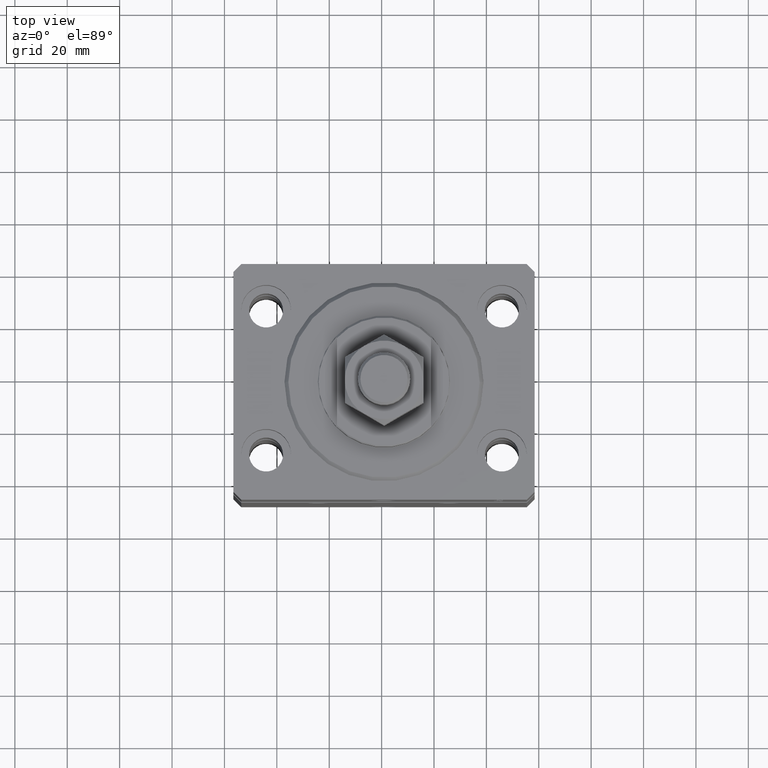
[diagram: clean part render]
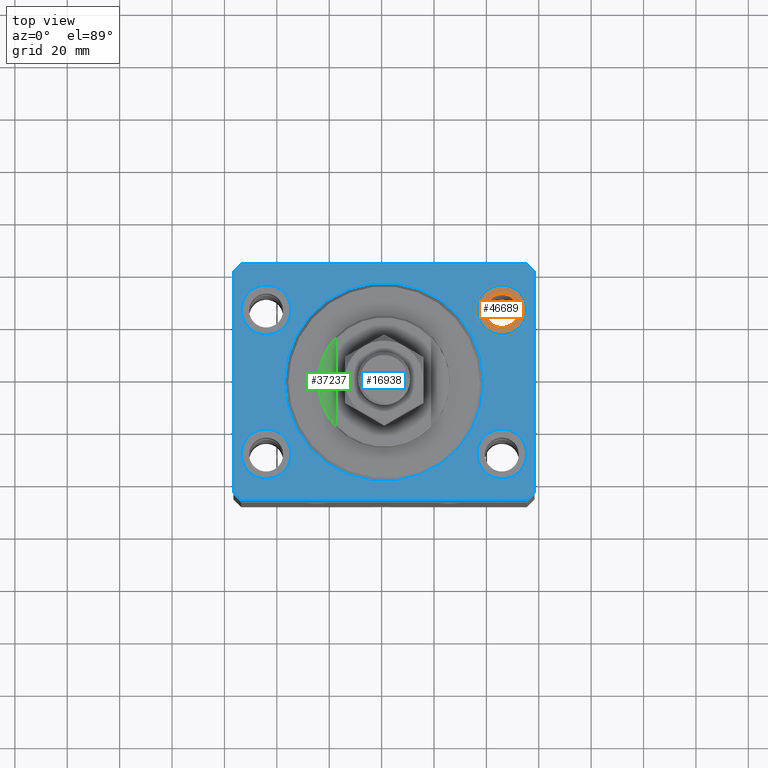
[diagram: same view with three faces highlighted in distinct colors, each labeled with its STEP entity id]
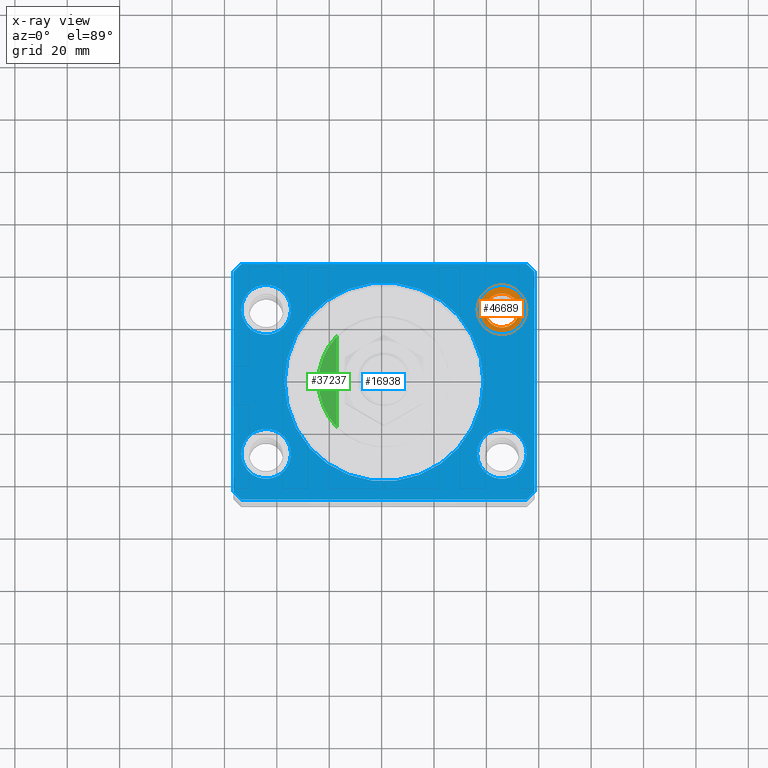
[diagram: x-ray of the same camera — body ghosted, the three highlighted faces saturated]
A machine part, top view with three faces highlighted in distinct colors.
The next image is the same camera in x-ray (body ghosted, the three faces saturated) — at least one of them is partly hidden behind the body in this view.
Their STEP definitions:

[orange] entity #46689 — the highlighted planar face has unit normal (0, 0, 1).
#2422 = DIRECTION ( 'NONE',  ( 1.000000000000000000, 0.000000000000000000, 0.000000000000000000 ) ) ;
#3208 = FACE_BOUND ( 'NONE', #36563, .T. ) ;
#3718 = AXIS2_PLACEMENT_3D ( 'NONE', #45501, #10846, #19519 ) ;
#3980 = CARTESIAN_POINT ( 'NONE',  ( 45.00000000000000000, 27.50000000000001776, -13.00000000000000000 ) ) ;
#4184 = DIRECTION ( 'NONE',  ( 1.000000000000000000, 0.000000000000000000, 0.000000000000000000 ) ) ;
#5514 = ORIENTED_EDGE ( 'NONE', *, *, #11477, .T. ) ;
#5842 = DIRECTION ( 'NONE',  ( 0.000000000000000000, 0.000000000000000000, 1.000000000000000000 ) ) ;
#7072 = EDGE_CURVE ( 'NONE', #32662, #12297, #16760, .T. ) ;
#9494 = CARTESIAN_POINT ( 'NONE',  ( 45.00000000000000000, 27.50000000000001776, -13.00000000000000000 ) ) ;
#10846 = DIRECTION ( 'NONE',  ( 0.000000000000000000, 0.000000000000000000, 1.000000000000000000 ) ) ;
#11477 = EDGE_CURVE ( 'NONE', #12297, #32662, #19236, .T. ) ;
#12297 = VERTEX_POINT ( 'NONE', #40716 ) ;
#14292 = VERTEX_POINT ( 'NONE', #45421 ) ;
#15544 = CARTESIAN_POINT ( 'NONE',  ( 51.50000000000000000, 27.50000000000001776, -13.00000000000000000 ) ) ;
#16760 = CIRCLE ( 'NONE', #47799, 9.500000000000001776 ) ;
#17808 = PLANE ( 'NONE',  #44869 ) ;
#18328 = DIRECTION ( 'NONE',  ( 1.000000000000000000, 0.000000000000000000, 0.000000000000000000 ) ) ;
#18730 = VERTEX_POINT ( 'NONE', #15544 ) ;
#19236 = CIRCLE ( 'NONE', #3718, 9.500000000000001776 ) ;
#19519 = DIRECTION ( 'NONE',  ( 1.000000000000000000, 0.000000000000000000, 0.000000000000000000 ) ) ;
#21271 = EDGE_CURVE ( 'NONE', #18730, #14292, #31455, .T. ) ;
#21971 = DIRECTION ( 'NONE',  ( 0.000000000000000000, 0.000000000000000000, 1.000000000000000000 ) ) ;
#25363 = AXIS2_PLACEMENT_3D ( 'NONE', #3980, #21971, #18328 ) ;
#25492 = ORIENTED_EDGE ( 'NONE', *, *, #21271, .F. ) ;
#27501 = CARTESIAN_POINT ( 'NONE',  ( 45.00000000000000000, 27.50000000000001776, -13.00000000000000000 ) ) ;
#29169 = EDGE_CURVE ( 'NONE', #14292, #18730, #30016, .T. ) ;
#30016 = CIRCLE ( 'NONE', #25363, 6.499999999999999112 ) ;
#30652 = DIRECTION ( 'NONE',  ( 0.000000000000000000, 0.000000000000000000, 1.000000000000000000 ) ) ;
#31455 = CIRCLE ( 'NONE', #40738, 6.499999999999999112 ) ;
#32633 = CARTESIAN_POINT ( 'NONE',  ( 45.00000000000000000, 27.50000000000001776, -13.00000000000000000 ) ) ;
#32662 = VERTEX_POINT ( 'NONE', #33631 ) ;
#33631 = CARTESIAN_POINT ( 'NONE',  ( 35.50000000000000000, 27.50000000000001776, -13.00000000000000000 ) ) ;
#36277 = FACE_OUTER_BOUND ( 'NONE', #43435, .T. ) ;
#36563 = EDGE_LOOP ( 'NONE', ( #25492, #47199 ) ) ;
#37826 = ORIENTED_EDGE ( 'NONE', *, *, #7072, .T. ) ;
#40395 = DIRECTION ( 'NONE',  ( 1.000000000000000000, 0.000000000000000000, -0.000000000000000000 ) ) ;
#40716 = CARTESIAN_POINT ( 'NONE',  ( 54.50000000000000000, 27.50000000000001776, -13.00000000000000000 ) ) ;
#40738 = AXIS2_PLACEMENT_3D ( 'NONE', #9494, #5842, #2422 ) ;
#43435 = EDGE_LOOP ( 'NONE', ( #5514, #37826 ) ) ;
#44869 = AXIS2_PLACEMENT_3D ( 'NONE', #32633, #47440, #40395 ) ;
#45421 = CARTESIAN_POINT ( 'NONE',  ( 38.50000000000000000, 27.50000000000001776, -13.00000000000000000 ) ) ;
#45501 = CARTESIAN_POINT ( 'NONE',  ( 45.00000000000000000, 27.50000000000001776, -13.00000000000000000 ) ) ;
#46689 = ADVANCED_FACE ( 'NONE', ( #3208, #36277 ), #17808, .T. ) ;
#47199 = ORIENTED_EDGE ( 'NONE', *, *, #29169, .F. ) ;
#47440 = DIRECTION ( 'NONE',  ( 0.000000000000000000, 0.000000000000000000, 1.000000000000000000 ) ) ;
#47799 = AXIS2_PLACEMENT_3D ( 'NONE', #27501, #30652, #4184 ) ;

[blue] entity #16938 — the highlighted planar face has unit normal (0, 0, 1).
#123 = DIRECTION ( 'NONE',  ( 0.000000000000000000, 0.000000000000000000, 1.000000000000000000 ) ) ;
#165 = ORIENTED_EDGE ( 'NONE', *, *, #18789, .F. ) ;
#867 = ORIENTED_EDGE ( 'NONE', *, *, #15584, .T. ) ;
#1116 = ORIENTED_EDGE ( 'NONE', *, *, #9834, .T. ) ;
#1436 = LINE ( 'NONE', #38135, #37787 ) ;
#1784 = VERTEX_POINT ( 'NONE', #39018 ) ;
#2127 = AXIS2_PLACEMENT_3D ( 'NONE', #39250, #9623, #6209 ) ;
#2175 = DIRECTION ( 'NONE',  ( -0.7071067811865483499, -0.7071067811865466846, 0.000000000000000000 ) ) ;
#2217 = LINE ( 'NONE', #20698, #26972 ) ;
#2300 = DIRECTION ( 'NONE',  ( 1.000000000000000000, 0.000000000000000000, 0.000000000000000000 ) ) ;
#2472 = CARTESIAN_POINT ( 'NONE',  ( 0.000000000000000000, 0.000000000000000000, 0.000000000000000000 ) ) ;
#3198 = ORIENTED_EDGE ( 'NONE', *, *, #31156, .T. ) ;
#3863 = VERTEX_POINT ( 'NONE', #27391 ) ;
#4190 = CIRCLE ( 'NONE', #45293, 9.500000000000001776 ) ;
#4194 = VERTEX_POINT ( 'NONE', #27096 ) ;
#4798 = VERTEX_POINT ( 'NONE', #7702 ) ;
#4919 = VERTEX_POINT ( 'NONE', #15924 ) ;
#5903 = LINE ( 'NONE', #20736, #5989 ) ;
#5989 = VECTOR ( 'NONE', #35551, 1000.000000000000000 ) ;
#6063 = LINE ( 'NONE', #35004, #28152 ) ;
#6074 = DIRECTION ( 'NONE',  ( 0.000000000000000000, 0.000000000000000000, 1.000000000000000000 ) ) ;
#6209 = DIRECTION ( 'NONE',  ( 1.000000000000000000, 0.000000000000000000, 0.000000000000000000 ) ) ;
#6461 = CARTESIAN_POINT ( 'NONE',  ( 57.50000000000055422, 41.99999999999997868, 0.000000000000000000 ) ) ;
#6820 = AXIS2_PLACEMENT_3D ( 'NONE', #47235, #17360, #2300 ) ;
#7410 = EDGE_LOOP ( 'NONE', ( #29266, #30169 ) ) ;
#7702 = CARTESIAN_POINT ( 'NONE',  ( 54.50000000000000000, 27.50000000000001776, 0.000000000000000000 ) ) ;
#7783 = DIRECTION ( 'NONE',  ( 0.000000000000000000, 0.000000000000000000, 1.000000000000000000 ) ) ;
#7784 = DIRECTION ( 'NONE',  ( 0.7071067811865483499, 0.7071067811865466846, 0.000000000000000000 ) ) ;
#8062 = CARTESIAN_POINT ( 'NONE',  ( 57.50000000000000711, -41.99999999999998579, 0.000000000000000000 ) ) ;
#8090 = AXIS2_PLACEMENT_3D ( 'NONE', #21890, #29651, #29412 ) ;
#8302 = LINE ( 'NONE', #8062, #22813 ) ;
#8355 = EDGE_CURVE ( 'NONE', #14677, #35409, #24234, .T. ) ;
#8487 = CARTESIAN_POINT ( 'NONE',  ( -45.00000000000000000, -27.49999999999999645, 0.000000000000000000 ) ) ;
#8541 = ORIENTED_EDGE ( 'NONE', *, *, #31639, .F. ) ;
#9025 = CARTESIAN_POINT ( 'NONE',  ( -38.00000000000000000, 4.653657836759941941E-15, 0.000000000000000000 ) ) ;
#9097 = CARTESIAN_POINT ( 'NONE',  ( 54.50000000000058975, 45.00000000000002842, 0.000000000000000000 ) ) ;
#9397 = VECTOR ( 'NONE', #17644, 999.9999999999998863 ) ;
#9536 = CIRCLE ( 'NONE', #14975, 38.00000000000000000 ) ;
#9623 = DIRECTION ( 'NONE',  ( 0.000000000000000000, 0.000000000000000000, 1.000000000000000000 ) ) ;
#9725 = FACE_BOUND ( 'NONE', #36438, .T. ) ;
#9796 = CARTESIAN_POINT ( 'NONE',  ( 57.50000000000000711, -41.99999999999998579, 0.000000000000000000 ) ) ;
#9834 = EDGE_CURVE ( 'NONE', #17242, #1784, #1436, .T. ) ;
#10316 = EDGE_LOOP ( 'NONE', ( #165, #8541 ) ) ;
#10483 = EDGE_CURVE ( 'NONE', #4919, #17242, #2217, .T. ) ;
#10873 = DIRECTION ( 'NONE',  ( 1.000000000000000000, 0.000000000000000000, 0.000000000000000000 ) ) ;
#11673 = CARTESIAN_POINT ( 'NONE',  ( -45.00000000000000000, 27.50000000000000355, 0.000000000000000000 ) ) ;
#11886 = DIRECTION ( 'NONE',  ( 0.000000000000000000, 0.000000000000000000, 1.000000000000000000 ) ) ;
#11899 = DIRECTION ( 'NONE',  ( 1.000000000000000000, 0.000000000000000000, 0.000000000000000000 ) ) ;
#11951 = ORIENTED_EDGE ( 'NONE', *, *, #19761, .F. ) ;
#12339 = EDGE_CURVE ( 'NONE', #38486, #23650, #9536, .T. ) ;
#12761 = EDGE_LOOP ( 'NONE', ( #11951, #47418 ) ) ;
#12862 = VECTOR ( 'NONE', #7784, 1000.000000000000000 ) ;
#12948 = EDGE_CURVE ( 'NONE', #23650, #38486, #40577, .T. ) ;
#13170 = EDGE_CURVE ( 'NONE', #45740, #18455, #8302, .T. ) ;
#13309 = CARTESIAN_POINT ( 'NONE',  ( -35.50000000000000000, 27.50000000000000355, 0.000000000000000000 ) ) ;
#13343 = VERTEX_POINT ( 'NONE', #14080 ) ;
#13353 = FACE_BOUND ( 'NONE', #7410, .T. ) ;
#13514 = DIRECTION ( 'NONE',  ( -1.000000000000000000, -2.546383084002639322E-16, 0.000000000000000000 ) ) ;
#14080 = CARTESIAN_POINT ( 'NONE',  ( 35.50000000000000000, -27.49999999999999645, 0.000000000000000000 ) ) ;
#14181 = EDGE_CURVE ( 'NONE', #14361, #4194, #44500, .T. ) ;
#14194 = CARTESIAN_POINT ( 'NONE',  ( -54.50000000000000711, -45.00000000000000000, 0.000000000000000000 ) ) ;
#14361 = VERTEX_POINT ( 'NONE', #37119 ) ;
#14425 = ORIENTED_EDGE ( 'NONE', *, *, #13170, .T. ) ;
#14640 = CARTESIAN_POINT ( 'NONE',  ( 45.00000000000000000, 27.50000000000001776, 0.000000000000000000 ) ) ;
#14677 = VERTEX_POINT ( 'NONE', #9097 ) ;
#14770 = ORIENTED_EDGE ( 'NONE', *, *, #14875, .F. ) ;
#14875 = EDGE_CURVE ( 'NONE', #4798, #30453, #28114, .T. ) ;
#14975 = AXIS2_PLACEMENT_3D ( 'NONE', #33451, #123, #29774 ) ;
#15584 = EDGE_CURVE ( 'NONE', #35409, #29383, #6063, .T. ) ;
#15924 = CARTESIAN_POINT ( 'NONE',  ( -57.50000000000000711, -42.00000000000000711, 0.000000000000000000 ) ) ;
#16198 = ORIENTED_EDGE ( 'NONE', *, *, #40481, .T. ) ;
#16538 = CIRCLE ( 'NONE', #19673, 9.500000000000001776 ) ;
#16883 = EDGE_CURVE ( 'NONE', #30453, #4798, #16538, .T. ) ;
#16938 = ADVANCED_FACE ( 'NONE', ( #13353, #21139, #9725, #36849, #18394, #33226 ), #48032, .T. ) ;
#17242 = VERTEX_POINT ( 'NONE', #14194 ) ;
#17307 = DIRECTION ( 'NONE',  ( 0.000000000000000000, 0.000000000000000000, 1.000000000000000000 ) ) ;
#17360 = DIRECTION ( 'NONE',  ( 0.000000000000000000, 0.000000000000000000, 1.000000000000000000 ) ) ;
#17644 = DIRECTION ( 'NONE',  ( -0.7071067811865376918, 0.7071067811865574537, 0.000000000000000000 ) ) ;
#18394 = FACE_BOUND ( 'NONE', #30825, .T. ) ;
#18455 = VERTEX_POINT ( 'NONE', #29752 ) ;
#18789 = EDGE_CURVE ( 'NONE', #34186, #3863, #4190, .T. ) ;
#18967 = ORIENTED_EDGE ( 'NONE', *, *, #10483, .T. ) ;
#19185 = DIRECTION ( 'NONE',  ( 1.000000000000000000, 0.000000000000000000, 0.000000000000000000 ) ) ;
#19673 = AXIS2_PLACEMENT_3D ( 'NONE', #26166, #44150, #10873 ) ;
#19761 = EDGE_CURVE ( 'NONE', #32607, #13343, #25939, .T. ) ;
#19981 = DIRECTION ( 'NONE',  ( 0.7071067811865491270, -0.7071067811865459074, 0.000000000000000000 ) ) ;
#20698 = CARTESIAN_POINT ( 'NONE',  ( -57.50000000000000711, -42.00000000000000711, 0.000000000000000000 ) ) ;
#20736 = CARTESIAN_POINT ( 'NONE',  ( -57.49999999999998579, 42.00000000000000711, 0.000000000000000000 ) ) ;
#21139 = FACE_BOUND ( 'NONE', #12761, .T. ) ;
#21890 = CARTESIAN_POINT ( 'NONE',  ( 45.00000000000000000, -27.49999999999999645, 0.000000000000000000 ) ) ;
#22623 = EDGE_CURVE ( 'NONE', #1784, #45740, #37653, .T. ) ;
#22813 = VECTOR ( 'NONE', #33101, 1000.000000000000000 ) ;
#23557 = AXIS2_PLACEMENT_3D ( 'NONE', #24542, #6074, #35719 ) ;
#23562 = AXIS2_PLACEMENT_3D ( 'NONE', #29870, #7783, #11899 ) ;
#23650 = VERTEX_POINT ( 'NONE', #34737 ) ;
#23727 = ORIENTED_EDGE ( 'NONE', *, *, #12948, .F. ) ;
#24234 = LINE ( 'NONE', #39036, #27650 ) ;
#24542 = CARTESIAN_POINT ( 'NONE',  ( 0.000000000000000000, 0.000000000000000000, 0.000000000000000000 ) ) ;
#24949 = EDGE_CURVE ( 'NONE', #4194, #14361, #37771, .T. ) ;
#25310 = DIRECTION ( 'NONE',  ( 1.000000000000000000, 0.000000000000000000, 0.000000000000000000 ) ) ;
#25939 = CIRCLE ( 'NONE', #8090, 9.500000000000001776 ) ;
#26166 = CARTESIAN_POINT ( 'NONE',  ( 45.00000000000000000, 27.50000000000001776, 0.000000000000000000 ) ) ;
#26484 = DIRECTION ( 'NONE',  ( 0.000000000000000000, 0.000000000000000000, 1.000000000000000000 ) ) ;
#26972 = VECTOR ( 'NONE', #19981, 1000.000000000000114 ) ;
#27096 = CARTESIAN_POINT ( 'NONE',  ( -35.50000000000000000, -27.49999999999999645, 0.000000000000000000 ) ) ;
#27391 = CARTESIAN_POINT ( 'NONE',  ( -54.50000000000000000, 27.50000000000000355, 0.000000000000000000 ) ) ;
#27650 = VECTOR ( 'NONE', #13514, 1000.000000000000000 ) ;
#28114 = CIRCLE ( 'NONE', #32773, 9.500000000000001776 ) ;
#28152 = VECTOR ( 'NONE', #2175, 1000.000000000000000 ) ;
#28428 = ORIENTED_EDGE ( 'NONE', *, *, #22623, .T. ) ;
#29266 = ORIENTED_EDGE ( 'NONE', *, *, #24949, .F. ) ;
#29383 = VERTEX_POINT ( 'NONE', #29667 ) ;
#29412 = DIRECTION ( 'NONE',  ( 1.000000000000000000, 0.000000000000000000, 0.000000000000000000 ) ) ;
#29651 = DIRECTION ( 'NONE',  ( 0.000000000000000000, 0.000000000000000000, 1.000000000000000000 ) ) ;
#29667 = CARTESIAN_POINT ( 'NONE',  ( -57.49999999999998579, 42.00000000000000711, 0.000000000000000000 ) ) ;
#29752 = CARTESIAN_POINT ( 'NONE',  ( 57.50000000000055422, 41.99999999999997868, 0.000000000000000000 ) ) ;
#29774 = DIRECTION ( 'NONE',  ( 1.000000000000000000, 0.000000000000000000, 0.000000000000000000 ) ) ;
#29870 = CARTESIAN_POINT ( 'NONE',  ( -45.00000000000000000, -27.49999999999999645, 0.000000000000000000 ) ) ;
#30169 = ORIENTED_EDGE ( 'NONE', *, *, #14181, .F. ) ;
#30445 = CARTESIAN_POINT ( 'NONE',  ( 54.50000000000000000, -27.49999999999999645, 0.000000000000000000 ) ) ;
#30453 = VERTEX_POINT ( 'NONE', #43715 ) ;
#30825 = EDGE_LOOP ( 'NONE', ( #23727, #34138 ) ) ;
#31156 = EDGE_CURVE ( 'NONE', #29383, #4919, #5903, .T. ) ;
#31639 = EDGE_CURVE ( 'NONE', #3863, #34186, #45605, .T. ) ;
#32530 = EDGE_CURVE ( 'NONE', #13343, #32607, #43271, .T. ) ;
#32607 = VERTEX_POINT ( 'NONE', #30445 ) ;
#32773 = AXIS2_PLACEMENT_3D ( 'NONE', #14640, #36281, #33376 ) ;
#33101 = DIRECTION ( 'NONE',  ( 6.443258625056715108E-15, 1.000000000000000000, 0.000000000000000000 ) ) ;
#33226 = FACE_OUTER_BOUND ( 'NONE', #37118, .T. ) ;
#33376 = DIRECTION ( 'NONE',  ( 1.000000000000000000, 0.000000000000000000, 0.000000000000000000 ) ) ;
#33451 = CARTESIAN_POINT ( 'NONE',  ( 0.000000000000000000, 0.000000000000000000, 0.000000000000000000 ) ) ;
#34138 = ORIENTED_EDGE ( 'NONE', *, *, #12339, .F. ) ;
#34186 = VERTEX_POINT ( 'NONE', #13309 ) ;
#34729 = DIRECTION ( 'NONE',  ( 1.000000000000000000, 1.273191542001326317E-16, 0.000000000000000000 ) ) ;
#34737 = CARTESIAN_POINT ( 'NONE',  ( 38.00000000000000000, 0.000000000000000000, 0.000000000000000000 ) ) ;
#35004 = CARTESIAN_POINT ( 'NONE',  ( -54.49999999999999289, 45.00000000000000000, 0.000000000000000000 ) ) ;
#35409 = VERTEX_POINT ( 'NONE', #48007 ) ;
#35551 = DIRECTION ( 'NONE',  ( -2.478176394252581141E-16, -1.000000000000000000, 0.000000000000000000 ) ) ;
#35719 = DIRECTION ( 'NONE',  ( 1.000000000000000000, 0.000000000000000000, -0.000000000000000000 ) ) ;
#36281 = DIRECTION ( 'NONE',  ( 0.000000000000000000, 0.000000000000000000, 1.000000000000000000 ) ) ;
#36438 = EDGE_LOOP ( 'NONE', ( #14770, #44201 ) ) ;
#36849 = FACE_BOUND ( 'NONE', #10316, .T. ) ;
#37118 = EDGE_LOOP ( 'NONE', ( #45722, #867, #3198, #18967, #1116, #28428, #14425, #16198 ) ) ;
#37119 = CARTESIAN_POINT ( 'NONE',  ( -54.50000000000000000, -27.49999999999999645, 0.000000000000000000 ) ) ;
#37415 = CARTESIAN_POINT ( 'NONE',  ( 54.50000000000000711, -44.99999999999998579, 0.000000000000000000 ) ) ;
#37653 = LINE ( 'NONE', #37415, #12862 ) ;
#37771 = CIRCLE ( 'NONE', #43958, 9.500000000000001776 ) ;
#37787 = VECTOR ( 'NONE', #34729, 1000.000000000000000 ) ;
#37898 = DIRECTION ( 'NONE',  ( 1.000000000000000000, 0.000000000000000000, 0.000000000000000000 ) ) ;
#38135 = CARTESIAN_POINT ( 'NONE',  ( -54.50000000000000711, -45.00000000000000000, 0.000000000000000000 ) ) ;
#38486 = VERTEX_POINT ( 'NONE', #9025 ) ;
#39018 = CARTESIAN_POINT ( 'NONE',  ( 54.50000000000000711, -44.99999999999998579, 0.000000000000000000 ) ) ;
#39036 = CARTESIAN_POINT ( 'NONE',  ( 54.50000000000058975, 45.00000000000002842, 0.000000000000000000 ) ) ;
#39250 = CARTESIAN_POINT ( 'NONE',  ( -45.00000000000000000, 27.50000000000000355, 0.000000000000000000 ) ) ;
#40231 = LINE ( 'NONE', #6461, #9397 ) ;
#40481 = EDGE_CURVE ( 'NONE', #18455, #14677, #40231, .T. ) ;
#40577 = CIRCLE ( 'NONE', #45227, 38.00000000000000000 ) ;
#43271 = CIRCLE ( 'NONE', #6820, 9.500000000000001776 ) ;
#43715 = CARTESIAN_POINT ( 'NONE',  ( 35.50000000000000000, 27.50000000000001776, 0.000000000000000000 ) ) ;
#43958 = AXIS2_PLACEMENT_3D ( 'NONE', #8487, #11886, #19185 ) ;
#44150 = DIRECTION ( 'NONE',  ( 0.000000000000000000, 0.000000000000000000, 1.000000000000000000 ) ) ;
#44201 = ORIENTED_EDGE ( 'NONE', *, *, #16883, .F. ) ;
#44500 = CIRCLE ( 'NONE', #23562, 9.500000000000001776 ) ;
#45227 = AXIS2_PLACEMENT_3D ( 'NONE', #2472, #17307, #25310 ) ;
#45293 = AXIS2_PLACEMENT_3D ( 'NONE', #11673, #26484, #37898 ) ;
#45605 = CIRCLE ( 'NONE', #2127, 9.500000000000001776 ) ;
#45722 = ORIENTED_EDGE ( 'NONE', *, *, #8355, .T. ) ;
#45740 = VERTEX_POINT ( 'NONE', #9796 ) ;
#47235 = CARTESIAN_POINT ( 'NONE',  ( 45.00000000000000000, -27.49999999999999645, 0.000000000000000000 ) ) ;
#47418 = ORIENTED_EDGE ( 'NONE', *, *, #32530, .F. ) ;
#48007 = CARTESIAN_POINT ( 'NONE',  ( -54.49999999999999289, 45.00000000000000000, 0.000000000000000000 ) ) ;
#48032 = PLANE ( 'NONE',  #23557 ) ;

[green] entity #37237 — the highlighted planar face has unit normal (0, 0, 1).
#3915 = CARTESIAN_POINT ( 'NONE',  ( 0.000000000000000000, 0.000000000000000000, -1.000000000000000000 ) ) ;
#6966 = EDGE_CURVE ( 'NONE', #39294, #16229, #15990, .T. ) ;
#10857 = AXIS2_PLACEMENT_3D ( 'NONE', #18813, #47470, #21735 ) ;
#10943 = ORIENTED_EDGE ( 'NONE', *, *, #40359, .F. ) ;
#11857 = LINE ( 'NONE', #26440, #38867 ) ;
#14204 = ORIENTED_EDGE ( 'NONE', *, *, #42620, .T. ) ;
#14579 = VERTEX_POINT ( 'NONE', #32695 ) ;
#15990 = CIRCLE ( 'NONE', #25292, 25.00000000000000000 ) ;
#16229 = VERTEX_POINT ( 'NONE', #30023 ) ;
#16825 = EDGE_LOOP ( 'NONE', ( #46058, #14204, #10943 ) ) ;
#18508 = DIRECTION ( 'NONE',  ( 0.000000000000000000, 0.000000000000000000, -1.000000000000000000 ) ) ;
#18813 = CARTESIAN_POINT ( 'NONE',  ( 0.000000000000000000, 0.000000000000000000, -1.000000000000000000 ) ) ;
#21735 = DIRECTION ( 'NONE',  ( 1.000000000000000000, 0.000000000000000000, 0.000000000000000000 ) ) ;
#22151 = DIRECTION ( 'NONE',  ( -1.000000000000000000, 0.000000000000000000, 0.000000000000000000 ) ) ;
#24690 = AXIS2_PLACEMENT_3D ( 'NONE', #42733, #30843, #39320 ) ;
#25292 = AXIS2_PLACEMENT_3D ( 'NONE', #3915, #18508, #22151 ) ;
#26440 = CARTESIAN_POINT ( 'NONE',  ( 18.00000000000000000, -41.24318125460256113, -1.000000000000000000 ) ) ;
#29495 = FACE_OUTER_BOUND ( 'NONE', #16825, .T. ) ;
#30023 = CARTESIAN_POINT ( 'NONE',  ( 25.00000000000000000, 0.000000000000000000, -1.000000000000000000 ) ) ;
#30843 = DIRECTION ( 'NONE',  ( 0.000000000000000000, 0.000000000000000000, -1.000000000000000000 ) ) ;
#32695 = CARTESIAN_POINT ( 'NONE',  ( 18.00000000000000000, -17.34935157289747920, -1.000000000000000000 ) ) ;
#33842 = CARTESIAN_POINT ( 'NONE',  ( 18.00000000000000000, 17.34935157289747920, -1.000000000000000000 ) ) ;
#37237 = ADVANCED_FACE ( 'NONE', ( #29495 ), #40911, .T. ) ;
#38867 = VECTOR ( 'NONE', #41250, 1000.000000000000000 ) ;
#39294 = VERTEX_POINT ( 'NONE', #33842 ) ;
#39320 = DIRECTION ( 'NONE',  ( -1.000000000000000000, 0.000000000000000000, 0.000000000000000000 ) ) ;
#40359 = EDGE_CURVE ( 'NONE', #39294, #14579, #11857, .T. ) ;
#40911 = PLANE ( 'NONE',  #10857 ) ;
#41250 = DIRECTION ( 'NONE',  ( 0.000000000000000000, -1.000000000000000000, -0.000000000000000000 ) ) ;
#42620 = EDGE_CURVE ( 'NONE', #16229, #14579, #47956, .T. ) ;
#42733 = CARTESIAN_POINT ( 'NONE',  ( 0.000000000000000000, 0.000000000000000000, -1.000000000000000000 ) ) ;
#46058 = ORIENTED_EDGE ( 'NONE', *, *, #6966, .T. ) ;
#47470 = DIRECTION ( 'NONE',  ( 0.000000000000000000, 0.000000000000000000, -1.000000000000000000 ) ) ;
#47956 = CIRCLE ( 'NONE', #24690, 25.00000000000000000 ) ;